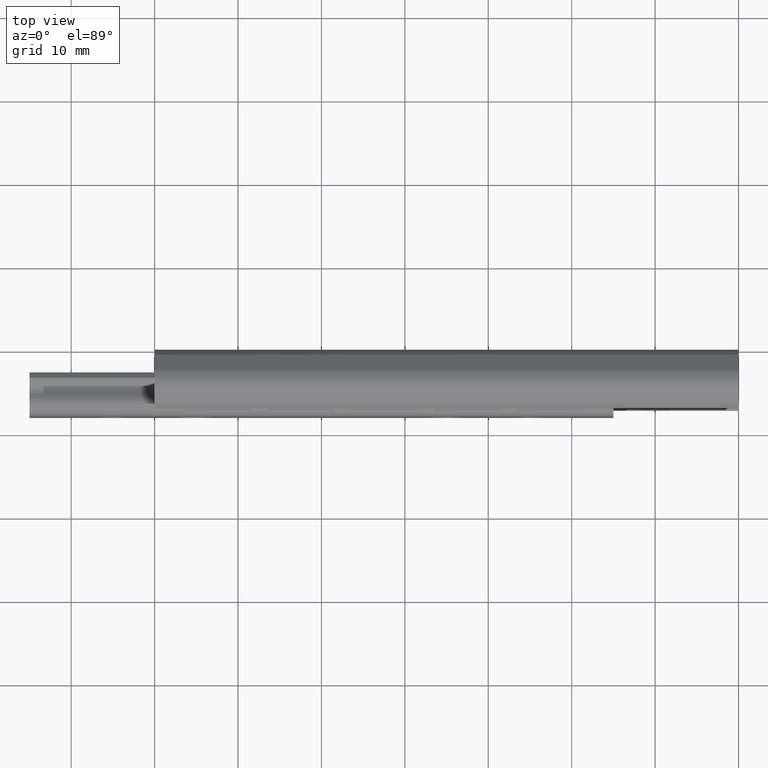
[diagram: clean part render]
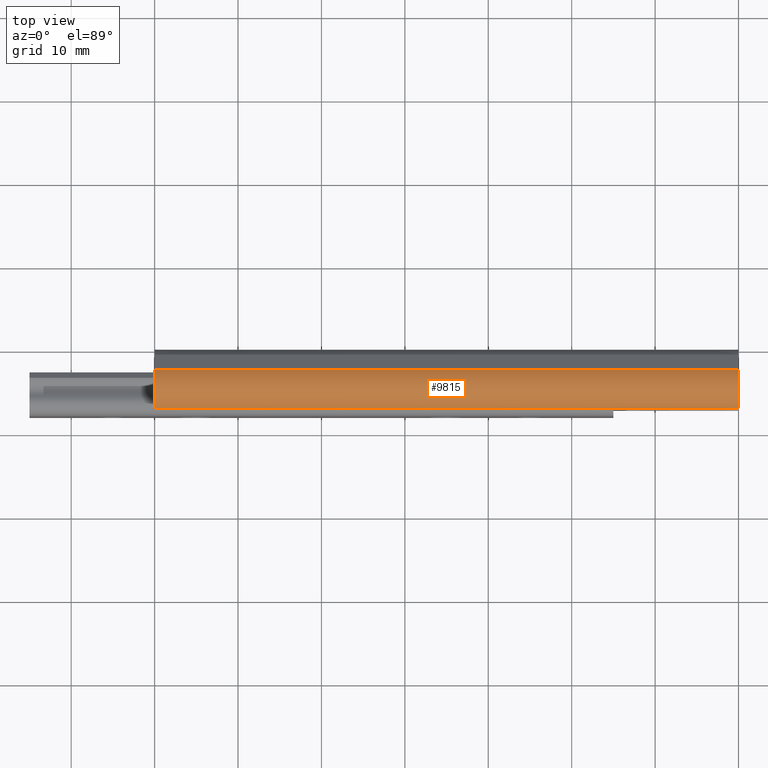
[diagram: same view with one face highlighted and labeled with its STEP entity id]
A machine part, top view. The second image highlights one B-rep face of the part: STEP entity #9815.
In plain terms, the highlighted face is a freeform B-spline surface patch.
Its self-contained STEP definition (entity closure, byte-faithful):
#7652=CARTESIAN_POINT('',(70.0,-7.078071239486619,8.522037986978919));
#7653=VERTEX_POINT('',#7652);
#7934=CARTESIAN_POINT('',(70.0,-2.466980046918090,9.201560556579119));
#7935=VERTEX_POINT('',#7934);
#7941=CARTESIAN_POINT('',(70.0,-2.466980046918093,9.201560556579118));
#7942=CARTESIAN_POINT('',(70.0,-3.517366435705748,10.177073308125911));
#7943=CARTESIAN_POINT('',(70.0,-4.935554769061138,9.968079180659549));
#7944=CARTESIAN_POINT('',(70.0,-6.353743102416529,9.759085053193191));
#7945=CARTESIAN_POINT('',(70.0,-7.078071239486623,8.522037986978921));
#7953=(BOUNDED_CURVE()B_SPLINE_CURVE(2,(#7941,#7942,#7943,#7944,#7945),.UNSPECIFIED.,.F.,.U.)B_SPLINE_CURVE_WITH_KNOTS((3,2,3),(0.0,0.500000000000000,1.0),.UNSPECIFIED.)CURVE()GEOMETRIC_REPRESENTATION_ITEM()RATIONAL_B_SPLINE_CURVE((1.0,0.901581321800918,1.0,0.901581321800918,1.0))REPRESENTATION_ITEM(''));
#7954=EDGE_CURVE('',#7935,#7653,#7953,.T.);
#8514=CARTESIAN_POINT('',(0.0,-7.078071239486619,8.522037986978919));
#8515=VERTEX_POINT('',#8514);
#8521=CARTESIAN_POINT('',(0.0,-2.466980046918090,9.201560556579119));
#8522=VERTEX_POINT('',#8521);
#8523=CARTESIAN_POINT('',(0.0,-2.466980046918093,9.201560556579118));
#8524=CARTESIAN_POINT('',(0.0,-3.517366435705748,10.177073308125911));
#8525=CARTESIAN_POINT('',(0.0,-4.935554769061138,9.968079180659549));
#8526=CARTESIAN_POINT('',(0.0,-6.353743102416529,9.759085053193191));
#8527=CARTESIAN_POINT('',(0.0,-7.078071239486623,8.522037986978921));
#8535=(BOUNDED_CURVE()B_SPLINE_CURVE(2,(#8523,#8524,#8525,#8526,#8527),.UNSPECIFIED.,.F.,.U.)B_SPLINE_CURVE_WITH_KNOTS((3,2,3),(0.0,0.500000000000000,1.0),.UNSPECIFIED.)CURVE()GEOMETRIC_REPRESENTATION_ITEM()RATIONAL_B_SPLINE_CURVE((1.0,0.901581321800918,1.0,0.901581321800918,1.0))REPRESENTATION_ITEM(''));
#8536=EDGE_CURVE('',#8522,#8515,#8535,.T.);
#9780=CARTESIAN_POINT('',(70.0,-2.466980046918090,9.201560556579119));
#9781=CARTESIAN_POINT('',(0.0,-2.466980046918090,9.201560556579119));
#9782=QUASI_UNIFORM_CURVE('',1,(#9780,#9781),.UNSPECIFIED.,.F.,.U.);
#9783=EDGE_CURVE('',#7935,#8522,#9782,.T.);
#9791=CARTESIAN_POINT('',(71.750000000000000,-2.393046872449932,9.130495459935304));
#9792=CARTESIAN_POINT('',(-1.793749999999989,-2.393046872449932,9.130495459935304));
#9793=CARTESIAN_POINT('',(71.749999999999986,-5.358479045898501,12.080467124452287));
#9794=CARTESIAN_POINT('',(-1.793749999999988,-5.358479045898501,12.080467124452287));
#9795=CARTESIAN_POINT('',(71.750000000000000,-7.186944746307170,8.318441874775454));
#9796=CARTESIAN_POINT('',(-1.793749999999989,-7.186944746307170,8.318441874775454));
#9804=(BOUNDED_SURFACE()B_SPLINE_SURFACE(1,2,((#9791,#9793,#9795),(#9792,#9794,#9796)),.UNSPECIFIED.,.F.,.F.,.U.)B_SPLINE_SURFACE_WITH_KNOTS((2,2),(3,3),(0.0,73.543749999999989),(0.0,6.149971177053698),.UNSPECIFIED.)GEOMETRIC_REPRESENTATION_ITEM()RATIONAL_B_SPLINE_SURFACE(((1.0,0.581021946329816,0.999362504122286),(1.0,0.581021946329816,0.999362504122286)))REPRESENTATION_ITEM('')SURFACE());
#9805=CARTESIAN_POINT('',(70.0,-7.078071239486619,8.522037986978919));
#9806=CARTESIAN_POINT('',(0.0,-7.078071239486619,8.522037986978919));
#9807=QUASI_UNIFORM_CURVE('',1,(#9805,#9806),.UNSPECIFIED.,.F.,.U.);
#9808=EDGE_CURVE('',#7653,#8515,#9807,.T.);
#9809=ORIENTED_EDGE('',*,*,#9808,.F.);
#9810=ORIENTED_EDGE('',*,*,#7954,.F.);
#9811=ORIENTED_EDGE('',*,*,#9783,.T.);
#9812=ORIENTED_EDGE('',*,*,#8536,.T.);
#9813=EDGE_LOOP('',(#9809,#9810,#9811,#9812));
#9814=FACE_OUTER_BOUND('',#9813,.T.);
#9815=ADVANCED_FACE('',(#9814),#9804,.T.);